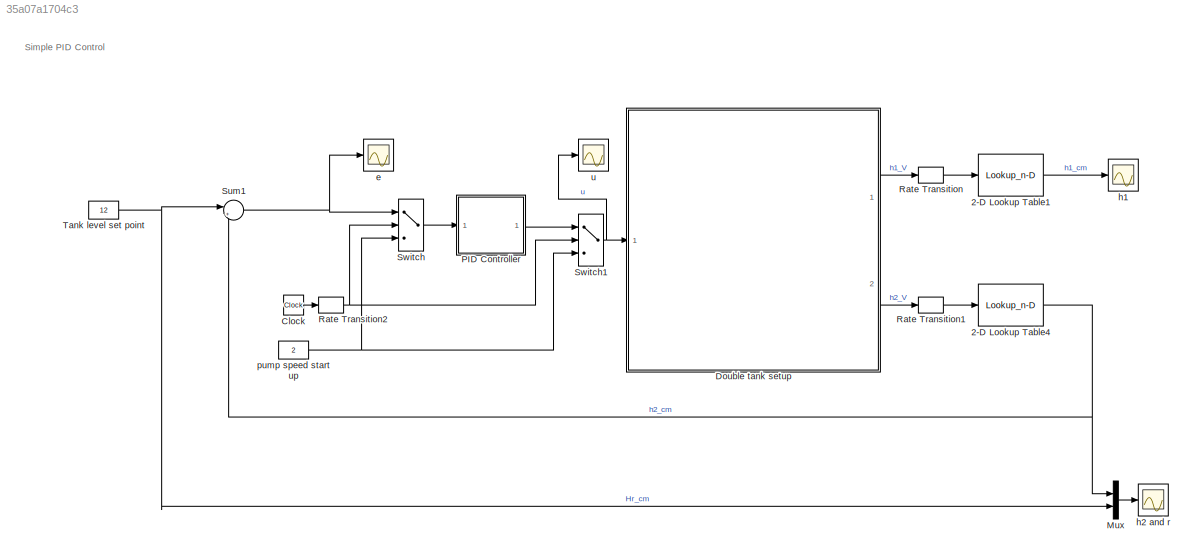
MODEL slx_35a07a1704c3
KIND model
CONFIG AbsTol = auto
CONFIG EnableMultiTasking = on
CONFIG FixedStep = auto
CONFIG MaxStep = auto
CONFIG MinStep = auto
CONFIG RelTol = 1e-3
CONFIG SampleTimeConstraint = Unconstrained
CONFIG Solver = ode5
CONFIG SolverName = ode5
CONFIG StartTime = 0.0
CONFIG StopTime = inf
BLOCK [Lookup_n-D] 2-D Lookup Table1
  BreakpointsForDimension1 = x
  BreakpointsForDimension2 = [1:3]
  NumberOfTableDimensions = 1
  Ports = [1, 1]
  RndMeth = Simplest
  Table = y
BLOCK [Lookup_n-D] 2-D Lookup Table4
  BreakpointsForDimension1 = x
  BreakpointsForDimension2 = [1:3]
  NumberOfTableDimensions = 1
  Ports = [1, 1]
  RndMeth = Simplest
  Table = y
BLOCK [Clock] Clock
  Decimation = 1
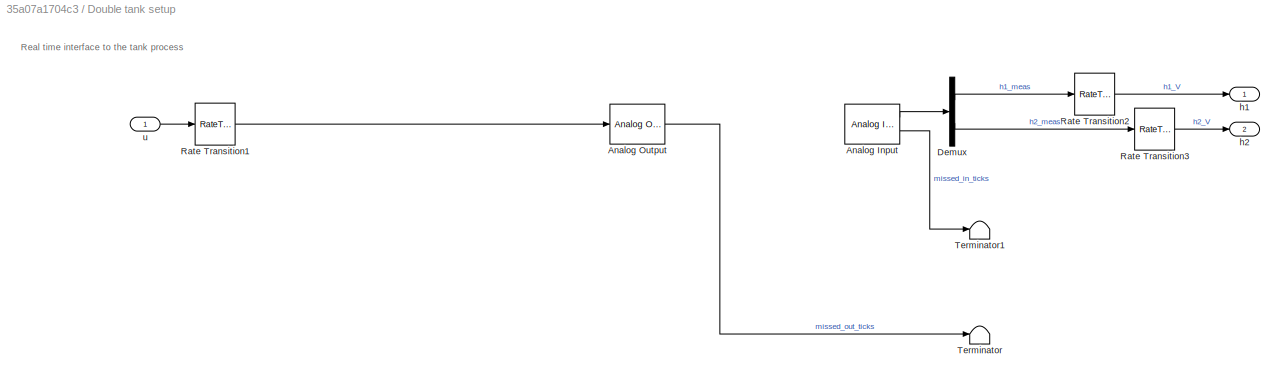
BLOCK [SubSystem] Double tank setup
  AncestorBlock = R0002E_lib/Double tank setup
  Ports = [1, 2]
  RequestExecContextInheritance = off
  StopFcn = chn =get_param(gcb,'u_ch');                          \ns = daq.createSession('ni');                         \nchannel = ['ao',chn];                                \ns.addAnalogOutputChannel('Dev1', channel, 'Voltage');\nx = zeros(5,1);                                      \ns.queueOutputData(x);                                \nlh = s.addlistener('DataRequired', ...               \n@(src,event) src.queue...<+472ch>
BLOCK [Reference] Double tank setup/Analog Input  REF=sldrtlib/Analog Input
  AttributesFormatString = National Instruments\nPCI-6024E [auto]
  Ports = [0, 2]
  SourceBlock = sldrtlib/Analog Input
  SourceProductBaseCode = WT
  SourceType = Simulink Desktop Real-Time Analog Input
BLOCK [Reference] Double tank setup/Analog Output  REF=sldrtlib/Analog Output
  AttributesFormatString = National Instruments\nPCI-6024E [auto]
  Ports = [1, 1]
  SourceBlock = sldrtlib/Analog Output
  SourceProductBaseCode = WT
  SourceType = Simulink Desktop Real-Time Analog Output
BLOCK [Demux] Double tank setup/Demux
  Outputs = 2
  Ports = [1, 2]
BLOCK [RateTransition] Double tank setup/Rate Transition1
  OutPortSampleTime = ts
BLOCK [RateTransition] Double tank setup/Rate Transition2
BLOCK [RateTransition] Double tank setup/Rate Transition3
BLOCK [Terminator] Double tank setup/Terminator
BLOCK [Terminator] Double tank setup/Terminator1
BLOCK [Outport] Double tank setup/h1
BLOCK [Outport] Double tank setup/h2
  Port = 2
BLOCK [Inport] Double tank setup/u
BLOCK [Mux] Mux
  DisplayOption = bar
  Inputs = 2
  Ports = [2, 1]
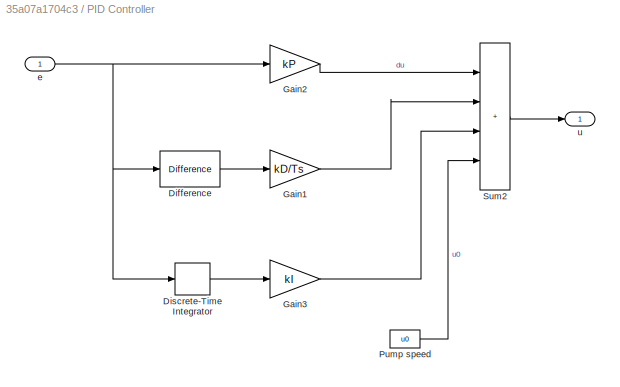
BLOCK [SubSystem] PID Controller
  Ports = [1, 1]
  RequestExecContextInheritance = off
BLOCK [Reference] PID Controller/Difference  REF=simulink/Discrete/Difference
  Ports = [1, 1]
  SourceBlock = simulink/Discrete/Difference
  SourceProductBaseCode = SL
  SourceType = Difference
BLOCK [DiscreteIntegrator] PID Controller/Discrete-Time Integrator
  ICPrevOutput = DiscIntNeverNeededParam
  ICPrevScaledInput = DiscIntNeverNeededParam
  Ports = [1, 1]
  SampleTime = Ts
BLOCK [Gain] PID Controller/Gain1
  Gain = kD/Ts
BLOCK [Gain] PID Controller/Gain2
  Gain = kP
BLOCK [Gain] PID Controller/Gain3
  Gain = kI
BLOCK [Constant] PID Controller/Pump speed
  SampleTime = Ts
  Value = u0
BLOCK [Sum] PID Controller/Sum2
  IconShape = rectangular
  Inputs = ++++
  Ports = [4, 1]
BLOCK [Inport] PID Controller/e
BLOCK [Outport] PID Controller/u
BLOCK [RateTransition] Rate Transition
  OutPortSampleTime = 0.5
BLOCK [RateTransition] Rate Transition1
  OutPortSampleTime = 0.5
BLOCK [RateTransition] Rate Transition2
  OutPortSampleTime = 0.5
BLOCK [Sum] Sum1
  Inputs = |+-
  Ports = [2, 1]
BLOCK [Switch] Switch
  InputSameDT = off
  SaturateOnIntegerOverflow = off
  Threshold = 80
BLOCK [Switch] Switch1
  InputSameDT = off
  SaturateOnIntegerOverflow = off
  Threshold = 80
BLOCK [Constant] Tank level set point
  SampleTime = 0.5
  Value = 12
BLOCK [Scope] e
  Floating = off
  NumInputPorts = 1
  Ports = [1]
  ScopeSpecificationString = Simulink.scopes.TimeScopeBlockCfg('CurrentConfiguration', extmgr.ConfigurationSet(extmgr.Configuration('Core','General UI',true),extmgr.Configuration('Core','Source UI',true),extmgr.Configuration('Sources','WiredSimulink',true,'DataLoggingVariableName','ScopeData3','SampleTime','0.5','DataLoggingLimitDataPoints',true,'DataLoggingSaveFormat','Array','DataLoggingDecimation','1','DataLoggingDecimateD...<+1730ch>
BLOCK [Scope] h1
  Floating = off
  NumInputPorts = 1
  Ports = [1]
  ScopeSpecificationString = Simulink.scopes.TimeScopeBlockCfg('CurrentConfiguration', extmgr.ConfigurationSet(extmgr.Configuration('Core','General UI',true),extmgr.Configuration('Core','Source UI',true),extmgr.Configuration('Sources','WiredSimulink',true,'DataLoggingVariableName','ScopeData2','SampleTime','0.5','DataLoggingLimitDataPoints',true,'DataLoggingSaveFormat','Array','DataLoggingDecimation','1','DataLoggingDecimateD...<+1735ch>
BLOCK [Scope] h2 and r
  Floating = off
  NumInputPorts = 1
  Ports = [1]
  ScopeSpecificationString = Simulink.scopes.TimeScopeBlockCfg('CurrentConfiguration', extmgr.ConfigurationSet(extmgr.Configuration('Core','General UI',true),extmgr.Configuration('Core','Source UI',true),extmgr.Configuration('Sources','WiredSimulink',true,'SampleTime','0.5','DataLoggingLimitDataPoints',true,'DataLoggingSaveFormat','Array','DataLoggingDecimation','1','DataLoggingDecimateData',true),extmgr.Configuration('Visual...<+1693ch>
BLOCK [Constant] pump speed start up
  SampleTime = 0.5
  Value = 2
BLOCK [Scope] u
  Floating = off
  NumInputPorts = 1
  Ports = [1]
  ScopeSpecificationString = Simulink.scopes.TimeScopeBlockCfg('CurrentConfiguration', extmgr.ConfigurationSet(extmgr.Configuration('Core','General UI',true),extmgr.Configuration('Core','Source UI',true),extmgr.Configuration('Sources','WiredSimulink',true,'DataLoggingVariableName','ScopeData1','SampleTime','0.5','DataLoggingLimitDataPoints',true,'DataLoggingSaveFormat','Array','DataLoggingDecimation','1','DataLoggingDecimateD...<+1730ch>
ANNOTATION (root): Simple PID Control
ANNOTATION Double tank setup: Real time interface to the tank process
LINE 2-D Lookup Table1:1 -> h1:1
NET 2-D Lookup Table4:1 -> Mux:1, Sum1:2
LINE Clock:1 -> Rate Transition2:1
LINE Double tank setup:1 -> Rate Transition:1
LINE Double tank setup:2 -> Rate Transition1:1
LINE Mux:1 -> h2 and r:1
LINE PID Controller/Difference:1 -> PID Controller/Gain1:1
LINE PID Controller/Discrete-Time Integrator:1 -> PID Controller/Gain3:1
LINE PID Controller/Gain1:1 -> PID Controller/Sum2:2
LINE PID Controller/Gain2:1 -> PID Controller/Sum2:1
LINE PID Controller/Gain3:1 -> PID Controller/Sum2:3
LINE PID Controller/Pump speed:1 -> PID Controller/Sum2:4
LINE PID Controller/Sum2:1 -> PID Controller/u:1
NET PID Controller/e:1 -> PID Controller/Difference:1, PID Controller/Discrete-Time Integrator:1, PID Controller/Gain2:1
LINE PID Controller:1 -> Switch1:1
LINE Rate Transition1:1 -> 2-D Lookup Table4:1
NET Rate Transition2:1 -> Switch1:2, Switch:2
LINE Rate Transition:1 -> 2-D Lookup Table1:1
NET Sum1:1 -> Switch:1, e:1
NET Switch1:1 -> Double tank setup:1, u:1
LINE Switch:1 -> PID Controller:1
NET Tank level set point:1 -> Mux:2, Sum1:1
NET pump speed start up:1 -> Switch1:3, Switch:3
note: NET lines group one-source signal fan-out (src -> all destinations, sorted); 1:1 wires keep LINE
